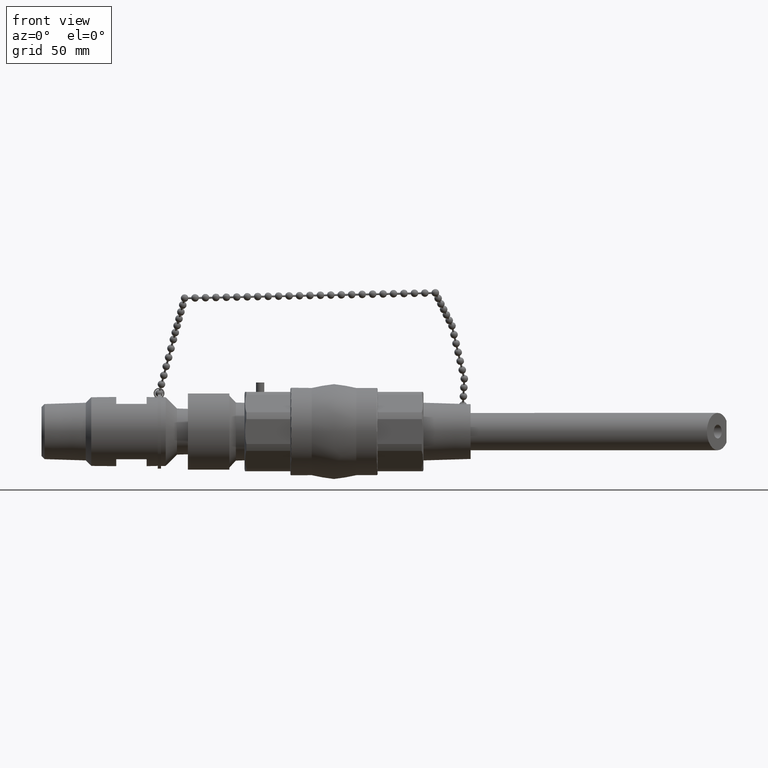
[diagram: clean part render]
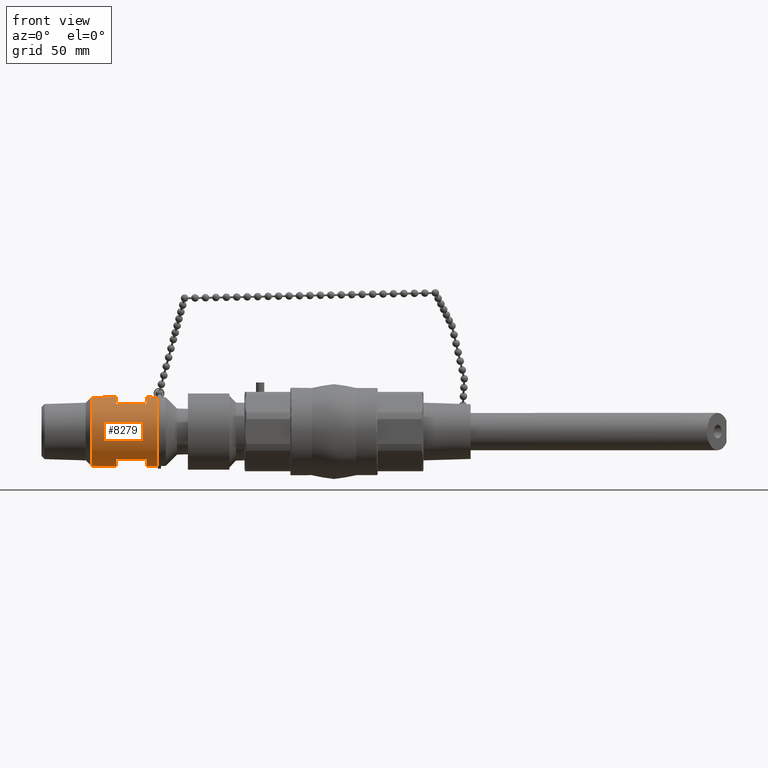
[diagram: same view with one face highlighted and labeled with its STEP entity id]
A machine part, front view. The second image highlights one B-rep face of the part: STEP entity #8279.
In plain terms, the highlighted cylindrical surface (bore or boss wall) has radius 15.875 mm, axis along (1, -0, 0).
Its self-contained STEP definition (entity closure, byte-faithful):
#7925=CARTESIAN_POINT('',(-3.186999999999999,0.625000000000000,-7.077011E-016));
#7926=VERTEX_POINT('',#7925);
#7927=CARTESIAN_POINT('',(-3.186999999999999,2.492252E-016,-7.077011E-016));
#7928=DIRECTION('',(1.0,0.0,0.0));
#7929=DIRECTION('',(0.0,1.0,0.0));
#7930=AXIS2_PLACEMENT_3D('',#7927,#7928,#7929);
#7931=CIRCLE('',#7930,0.625000000000000);
#7932=EDGE_CURVE('',#7926,#7926,#7931,.T.);
#7945=CARTESIAN_POINT('',(-4.387000000000001,0.625000000000000,-8.795185E-016));
#7946=VERTEX_POINT('',#7945);
#7947=CARTESIAN_POINT('',(-4.387000000000001,2.492252E-016,-8.795185E-016));
#7948=DIRECTION('',(1.0,0.0,0.0));
#7949=DIRECTION('',(0.0,1.0,0.0));
#7950=AXIS2_PLACEMENT_3D('',#7947,#7948,#7949);
#7951=CIRCLE('',#7950,0.625000000000000);
#7952=EDGE_CURVE('',#7946,#7946,#7951,.T.);
#8020=CARTESIAN_POINT('',(-3.787000000000000,2.492252E-016,-7.936098E-016));
#8021=DIRECTION('',(1.0,-5.323000E-031,1.431812E-016));
#8022=DIRECTION('',(0.0,1.0,0.0));
#8023=AXIS2_PLACEMENT_3D('',#8020,#8021,#8022);
#8024=CYLINDRICAL_SURFACE('',#8023,0.625000000000000);
#8025=ORIENTED_EDGE('',*,*,#7932,.F.);
#8026=EDGE_LOOP('',(#8025));
#8027=FACE_OUTER_BOUND('',#8026,.T.);
#8028=CARTESIAN_POINT('',(-3.537000000000000,0.624658342243656,-0.020662900701695));
#8029=VERTEX_POINT('',#8028);
#8030=CARTESIAN_POINT('',(-3.537000000000000,0.623720436847019,-0.039972698925194));
#8031=VERTEX_POINT('',#8030);
#8032=CARTESIAN_POINT('',(-3.537000000000000,2.492252E-016,-7.578145E-016));
#8033=DIRECTION('',(-1.0,0.0,0.0));
#8034=DIRECTION('',(0.0,1.0,0.0));
#8035=AXIS2_PLACEMENT_3D('',#8032,#8033,#8034);
#8036=CIRCLE('',#8035,0.625000000000000);
#8037=EDGE_CURVE('',#8029,#8031,#8036,.T.);
#8038=ORIENTED_EDGE('',*,*,#8037,.T.);
#8039=CARTESIAN_POINT('',(-3.386999999999998,0.625000000000000,-7.365767E-016));
#8040=VERTEX_POINT('',#8039);
#8041=CARTESIAN_POINT('',(-3.537000000000000,0.623720436847019,-0.039972698925194));
#8042=CARTESIAN_POINT('',(-3.528666666666667,0.623862561998753,-0.037755026260849));
#8043=CARTESIAN_POINT('',(-3.514083333333332,0.624090582541828,-0.033872772584588));
#8044=CARTESIAN_POINT('',(-3.497416666666671,0.624309754583237,-0.029433699923929));
#8045=CARTESIAN_POINT('',(-3.484916666666670,0.624456374058254,-0.026103589776494));
#8046=CARTESIAN_POINT('',(-3.476583333333337,0.624545239561686,-0.023883137200149));
#8047=CARTESIAN_POINT('',(-3.466166666666671,0.624645218051794,-0.021107156760391));
#8048=CARTESIAN_POINT('',(-3.457833333333337,0.624716317280063,-0.018886064321693));
#8049=CARTESIAN_POINT('',(-3.447416666666666,0.624794084964382,-0.016109372893451));
#8050=CARTESIAN_POINT('',(-3.439083333333332,0.624847413367492,-0.013887782741573));
#8051=CARTESIAN_POINT('',(-3.428666666666667,0.624902965268728,-0.011110558032144));
#8052=CARTESIAN_POINT('',(-3.420333333333333,0.624938519433846,-0.008888612348097));
#8053=CARTESIAN_POINT('',(-3.409916666666665,0.624971851996049,-0.006111032098916));
#8054=CARTESIAN_POINT('',(-3.399499999999996,0.624994074062527,-0.003333333333352));
#8055=CARTESIAN_POINT('',(-3.391166666666665,0.625000000000000,-0.001111111111112));
#8056=CARTESIAN_POINT('',(-3.386999999999998,0.625000000000000,-7.365767E-016));
#8057=B_SPLINE_CURVE_WITH_KNOTS('',3,(#8041,#8042,#8043,#8044,#8045,#8046,#8047,#8048,#8049,#8050,#8051,#8052,#8053,#8054,#8055,#8056),.UNSPECIFIED.,.F.,.U.,(4,1,1,1,1,1,1,1,1,1,1,1,1,4),(-0.394314037285005,-0.328595031070837,-0.279305776410212,-0.262876024856670,-0.230016521749586,-0.213586770196044,-0.180727267088961,-0.164297515535419,-0.131438012428335,-0.115008260874793,-0.082148757767709,-0.065719006214167,-0.032859503107084,0.0),.UNSPECIFIED.);
#8058=EDGE_CURVE('',#8031,#8040,#8057,.T.);
#8059=ORIENTED_EDGE('',*,*,#8058,.T.);
#8060=CARTESIAN_POINT('',(-3.536999999999999,0.623720436847019,0.039972698925193));
#8061=VERTEX_POINT('',#8060);
#8062=CARTESIAN_POINT('',(-3.387000000000000,0.625000000000000,-7.527284E-016));
#8063=CARTESIAN_POINT('',(-3.395333333333333,0.625000000000000,0.002222222222221));
#8064=CARTESIAN_POINT('',(-3.409916666666662,0.624979259064616,0.006111111110902));
#8065=CARTESIAN_POINT('',(-3.426583333333332,0.624914075650919,0.010555113090304));
#8066=CARTESIAN_POINT('',(-3.439083333333330,0.624847413367235,0.013887782741565));
#8067=CARTESIAN_POINT('',(-3.447416666666664,0.624794084964529,0.016109372893453));
#8068=CARTESIAN_POINT('',(-3.457833333333329,0.624716317280025,0.018886064321691));
#8069=CARTESIAN_POINT('',(-3.466166666666664,0.624645218051830,0.021107156760390));
#8070=CARTESIAN_POINT('',(-3.476583333333334,0.624545239561538,0.023883137200141));
#8071=CARTESIAN_POINT('',(-3.484916666666665,0.624456374058511,0.026103589776503));
#8072=CARTESIAN_POINT('',(-3.495333333333331,0.624334191160828,0.028878681565959));
#8073=CARTESIAN_POINT('',(-3.503666666666665,0.624227565070497,0.031098352171786));
#8074=CARTESIAN_POINT('',(-3.514083333333330,0.624083185584445,0.033872377705979));
#8075=CARTESIAN_POINT('',(-3.524500000000000,0.623927710769327,0.036645810927514));
#8076=CARTESIAN_POINT('',(-3.532833333333332,0.623791499422886,0.038863862593020));
#8077=CARTESIAN_POINT('',(-3.536999999999999,0.623720436847019,0.039972698925193));
#8078=B_SPLINE_CURVE_WITH_KNOTS('',3,(#8062,#8063,#8064,#8065,#8066,#8067,#8068,#8069,#8070,#8071,#8072,#8073,#8074,#8075,#8076,#8077),.UNSPECIFIED.,.F.,.U.,(4,1,1,1,1,1,1,1,1,1,1,1,1,4),(-0.394314037285005,-0.328595031070837,-0.279305776410212,-0.262876024856670,-0.230016521749586,-0.213586770196044,-0.180727267088961,-0.164297515535419,-0.131438012428335,-0.115008260874793,-0.082148757767709,-0.065719006214167,-0.032859503107084,0.0),.UNSPECIFIED.);
#8079=EDGE_CURVE('',#8040,#8061,#8078,.T.);
#8080=ORIENTED_EDGE('',*,*,#8079,.T.);
#8081=CARTESIAN_POINT('',(-3.537000000000000,0.624658342243656,0.020662900701694));
#8082=VERTEX_POINT('',#8081);
#8083=CARTESIAN_POINT('',(-3.536999999999997,2.492252E-016,-7.578145E-016));
#8084=DIRECTION('',(-1.0,0.0,-3.652217E-014));
#8085=DIRECTION('',(0.0,1.0,0.0));
#8086=AXIS2_PLACEMENT_3D('',#8083,#8084,#8085);
#8087=CIRCLE('',#8086,0.625000000000000);
#8088=EDGE_CURVE('',#8061,#8082,#8087,.T.);
#8089=ORIENTED_EDGE('',*,*,#8088,.T.);
#8090=CARTESIAN_POINT('',(-3.459499999999999,0.625000000000000,-7.452338E-016));
#8091=VERTEX_POINT('',#8090);
#8092=CARTESIAN_POINT('',(-3.537000000000000,0.624658342243656,0.020662900701694));
#8093=CARTESIAN_POINT('',(-3.532694444444445,0.624696300757538,0.019515380191498));
#8094=CARTESIAN_POINT('',(-3.525159722222221,0.624757194544063,0.017507036253815));
#8095=CARTESIAN_POINT('',(-3.516548611111114,0.624815718369598,0.015211480947638));
#8096=CARTESIAN_POINT('',(-3.510090277777779,0.624854866858367,0.013489703323744));
#8097=CARTESIAN_POINT('',(-3.505784722222223,0.624878593586902,0.012341799270770));
#8098=CARTESIAN_POINT('',(-3.500402777777781,0.624905286498493,0.010906861996272));
#8099=CARTESIAN_POINT('',(-3.496097222222225,0.624924268367749,0.009758869678736));
#8100=CARTESIAN_POINT('',(-3.490715277777782,0.624945029994155,0.008323834331386));
#8101=CARTESIAN_POINT('',(-3.486409722222227,0.624959266679861,0.007175773362073));
#8102=CARTESIAN_POINT('',(-3.481027777777784,0.624974096666367,0.005740664458618));
#8103=CARTESIAN_POINT('',(-3.476722222222228,0.624983587925309,0.004592554451483));
#8104=CARTESIAN_POINT('',(-3.471340277777777,0.624992486018506,0.003157396509927));
#8105=CARTESIAN_POINT('',(-3.465958333333334,0.624998418106174,0.001722222222222));
#8106=CARTESIAN_POINT('',(-3.461652777777776,0.625000000000000,0.000574074074073));
#8107=CARTESIAN_POINT('',(-3.459499999999999,0.625000000000000,-7.452338E-016));
#8108=B_SPLINE_CURVE_WITH_KNOTS('',3,(#8092,#8093,#8094,#8095,#8096,#8097,#8098,#8099,#8100,#8101,#8102,#8103,#8104,#8105,#8106,#8107),.UNSPECIFIED.,.F.,.U.,(4,1,1,1,1,1,1,1,1,1,1,1,1,4),(-0.203728919263919,-0.169774099386600,-0.144307984478610,-0.135819279509280,-0.118841869570620,-0.110353164601290,-0.093375754662630,-0.084887049693300,-0.067909639754640,-0.059420934785310,-0.042443524846650,-0.033954819877320,-0.016977409938660,0.0),.UNSPECIFIED.);
#8109=EDGE_CURVE('',#8082,#8091,#8108,.T.);
#8110=ORIENTED_EDGE('',*,*,#8109,.T.);
#8111=CARTESIAN_POINT('',(-3.459500000000000,0.625000000000000,-7.849638E-016));
#8112=CARTESIAN_POINT('',(-3.463805555555556,0.625000000000000,-0.001148148148149));
#8113=CARTESIAN_POINT('',(-3.471340277777783,0.624994463360617,-0.003157407407401));
#8114=CARTESIAN_POINT('',(-3.479951388888896,0.624977062663807,-0.005453642677931));
#8115=CARTESIAN_POINT('',(-3.486409722222228,0.624959266679844,-0.007175773362074));
#8116=CARTESIAN_POINT('',(-3.490715277777787,0.624945029994167,-0.008323834331388));
#8117=CARTESIAN_POINT('',(-3.496097222222230,0.624924268367748,-0.009758869678738));
#8118=CARTESIAN_POINT('',(-3.500402777777784,0.624905286498498,-0.010906861996273));
#8119=CARTESIAN_POINT('',(-3.505784722222232,0.624878593586892,-0.012341799270771));
#8120=CARTESIAN_POINT('',(-3.510090277777781,0.624854866858386,-0.013489703323746));
#8121=CARTESIAN_POINT('',(-3.515472222222228,0.624822243117615,-0.014924518010321));
#8122=CARTESIAN_POINT('',(-3.519777777777782,0.624793771935222,-0.016072314187460));
#8123=CARTESIAN_POINT('',(-3.525159722222226,0.624755217922595,-0.017506981773134));
#8124=CARTESIAN_POINT('',(-3.530541666666667,0.624713698985398,-0.018941567637977));
#8125=CARTESIAN_POINT('',(-3.534847222222223,0.624677321500597,-0.020089140446597));
#8126=CARTESIAN_POINT('',(-3.537000000000001,0.624658342243656,-0.020662900701695));
#8127=B_SPLINE_CURVE_WITH_KNOTS('',3,(#8111,#8112,#8113,#8114,#8115,#8116,#8117,#8118,#8119,#8120,#8121,#8122,#8123,#8124,#8125,#8126),.UNSPECIFIED.,.F.,.U.,(4,1,1,1,1,1,1,1,1,1,1,1,1,4),(-0.203728919263919,-0.169774099386599,-0.144307984478609,-0.135819279509279,-0.118841869570619,-0.110353164601289,-0.093375754662629,-0.084887049693299,-0.067909639754640,-0.059420934785310,-0.042443524846650,-0.033954819877320,-0.016977409938660,0.0),.UNSPECIFIED.);
#8128=EDGE_CURVE('',#8091,#8029,#8127,.T.);
#8129=ORIENTED_EDGE('',*,*,#8128,.T.);
#8130=EDGE_LOOP('',(#8038,#8059,#8080,#8089,#8110,#8129));
#8131=FACE_BOUND('',#8130,.T.);
#8132=CARTESIAN_POINT('',(-3.937000000000000,0.624920001706652,-0.009999573338795));
#8133=VERTEX_POINT('',#8132);
#8134=CARTESIAN_POINT('',(-3.787000000000000,0.624920001706653,-0.009999573338795));
#8135=VERTEX_POINT('',#8134);
#8136=CARTESIAN_POINT('',(-3.937000000000000,0.624920001706652,-0.009999573338795));
#8137=DIRECTION('',(1.0,0.0,0.0));
#8138=VECTOR('',#8137,0.150000000000000);
#8139=LINE('',#8136,#8138);
#8140=EDGE_CURVE('',#8133,#8135,#8139,.T.);
#8141=ORIENTED_EDGE('',*,*,#8140,.T.);
#8142=CARTESIAN_POINT('',(-3.787000000000000,0.624920001706652,0.009999573338794));
#8143=VERTEX_POINT('',#8142);
#8144=CARTESIAN_POINT('',(-3.786999999999998,2.492252E-016,-7.936098E-016));
#8145=DIRECTION('',(1.0,0.0,0.0));
#8146=DIRECTION('',(0.0,1.0,0.0));
#8147=AXIS2_PLACEMENT_3D('',#8144,#8145,#8146);
#8148=CIRCLE('',#8147,0.625000000000000);
#8149=EDGE_CURVE('',#8135,#8143,#8148,.T.);
#8150=ORIENTED_EDGE('',*,*,#8149,.T.);
#8151=CARTESIAN_POINT('',(-3.937000000000000,0.624920001706653,0.009999573338794));
#8152=VERTEX_POINT('',#8151);
#8153=CARTESIAN_POINT('',(-3.787000000000000,0.624920001706652,0.009999573338794));
#8154=DIRECTION('',(-1.0,0.0,0.0));
#8155=VECTOR('',#8154,0.150000000000000);
#8156=LINE('',#8153,#8155);
#8157=EDGE_CURVE('',#8143,#8152,#8156,.T.);
#8158=ORIENTED_EDGE('',*,*,#8157,.T.);
#8159=CARTESIAN_POINT('',(-3.936999999999999,2.492252E-016,-8.150870E-016));
#8160=DIRECTION('',(-1.0,0.0,0.0));
#8161=DIRECTION('',(0.0,1.0,0.0));
#8162=AXIS2_PLACEMENT_3D('',#8159,#8160,#8161);
#8163=CIRCLE('',#8162,0.625000000000000);
#8164=EDGE_CURVE('',#8152,#8133,#8163,.T.);
#8165=ORIENTED_EDGE('',*,*,#8164,.T.);
#8166=EDGE_LOOP('',(#8141,#8150,#8158,#8165));
#8167=FACE_BOUND('',#8166,.T.);
#8168=CARTESIAN_POINT('',(-3.737000000000000,0.624920001706652,-0.009999573338795));
#8169=VERTEX_POINT('',#8168);
#8170=CARTESIAN_POINT('',(-3.586999999999998,0.624920001706653,-0.009999573338795));
#8171=VERTEX_POINT('',#8170);
#8172=CARTESIAN_POINT('',(-3.737000000000000,0.624920001706652,-0.009999573338795));
#8173=DIRECTION('',(1.0,0.0,0.0));
#8174=VECTOR('',#8173,0.150000000000002);
#8175=LINE('',#8172,#8174);
#8176=EDGE_CURVE('',#8169,#8171,#8175,.T.);
#8177=ORIENTED_EDGE('',*,*,#8176,.T.);
#8178=CARTESIAN_POINT('',(-3.587000000000001,0.624920001706652,0.009999573338794));
#8179=VERTEX_POINT('',#8178);
#8180=CARTESIAN_POINT('',(-3.587000000000001,2.492252E-016,-7.649735E-016));
#8181=DIRECTION('',(1.0,0.0,3.516837E-014));
#8182=DIRECTION('',(0.0,1.0,0.0));
#8183=AXIS2_PLACEMENT_3D('',#8180,#8181,#8182);
#8184=CIRCLE('',#8183,0.625000000000000);
#8185=EDGE_CURVE('',#8171,#8179,#8184,.T.);
#8186=ORIENTED_EDGE('',*,*,#8185,.T.);
#8187=CARTESIAN_POINT('',(-3.736999999999999,0.624920001706653,0.009999573338794));
#8188=VERTEX_POINT('',#8187);
#8189=CARTESIAN_POINT('',(-3.587000000000001,0.624920001706652,0.009999573338794));
#8190=DIRECTION('',(-1.0,0.0,0.0));
#8191=VECTOR('',#8190,0.149999999999998);
#8192=LINE('',#8189,#8191);
#8193=EDGE_CURVE('',#8179,#8188,#8192,.T.);
#8194=ORIENTED_EDGE('',*,*,#8193,.T.);
#8195=CARTESIAN_POINT('',(-3.737000000000000,2.492252E-016,-7.864507E-016));
#8196=DIRECTION('',(-1.0,0.0,0.0));
#8197=DIRECTION('',(0.0,1.0,0.0));
#8198=AXIS2_PLACEMENT_3D('',#8195,#8196,#8197);
#8199=CIRCLE('',#8198,0.625000000000000);
#8200=EDGE_CURVE('',#8188,#8169,#8199,.T.);
#8201=ORIENTED_EDGE('',*,*,#8200,.T.);
#8202=EDGE_LOOP('',(#8177,#8186,#8194,#8201));
#8203=FACE_BOUND('',#8202,.T.);
#8204=CARTESIAN_POINT('',(-3.387000000000000,0.375000000000000,0.499999999999999));
#8205=VERTEX_POINT('',#8204);
#8206=CARTESIAN_POINT('',(-3.387000000000000,-0.375000000000000,0.499999999999999));
#8207=VERTEX_POINT('',#8206);
#8208=CARTESIAN_POINT('',(-3.387000000000000,2.492252E-016,-7.363373E-016));
#8209=DIRECTION('',(1.0,0.0,0.0));
#8210=DIRECTION('',(0.0,1.0,0.0));
#8211=AXIS2_PLACEMENT_3D('',#8208,#8209,#8210);
#8212=CIRCLE('',#8211,0.625000000000000);
#8213=EDGE_CURVE('',#8205,#8207,#8212,.T.);
#8214=ORIENTED_EDGE('',*,*,#8213,.T.);
#8215=CARTESIAN_POINT('',(-3.936999999999999,-0.375000000000000,0.499999999999999));
#8216=VERTEX_POINT('',#8215);
#8217=CARTESIAN_POINT('',(-3.387000000000000,-0.375000000000000,0.499999999999999));
#8218=DIRECTION('',(-1.0,0.0,0.0));
#8219=VECTOR('',#8218,0.549999999999999);
#8220=LINE('',#8217,#8219);
#8221=EDGE_CURVE('',#8207,#8216,#8220,.T.);
#8222=ORIENTED_EDGE('',*,*,#8221,.T.);
#8223=CARTESIAN_POINT('',(-3.936999999999999,0.375000000000000,0.499999999999999));
#8224=VERTEX_POINT('',#8223);
#8225=CARTESIAN_POINT('',(-3.936999999999999,2.492252E-016,-8.150870E-016));
#8226=DIRECTION('',(-1.0,0.0,0.0));
#8227=DIRECTION('',(0.0,1.0,0.0));
#8228=AXIS2_PLACEMENT_3D('',#8225,#8226,#8227);
#8229=CIRCLE('',#8228,0.625000000000000);
#8230=EDGE_CURVE('',#8216,#8224,#8229,.T.);
#8231=ORIENTED_EDGE('',*,*,#8230,.T.);
#8232=CARTESIAN_POINT('',(-3.936999999999999,0.375000000000000,0.499999999999999));
#8233=DIRECTION('',(1.0,0.0,0.0));
#8234=VECTOR('',#8233,0.549999999999999);
#8235=LINE('',#8232,#8234);
#8236=EDGE_CURVE('',#8224,#8205,#8235,.T.);
#8237=ORIENTED_EDGE('',*,*,#8236,.T.);
#8238=EDGE_LOOP('',(#8214,#8222,#8231,#8237));
#8239=FACE_BOUND('',#8238,.T.);
#8240=CARTESIAN_POINT('',(-3.936999999999999,-0.375000000000000,-0.500000000000001));
#8241=VERTEX_POINT('',#8240);
#8242=CARTESIAN_POINT('',(-3.387000000000000,-0.375000000000000,-0.500000000000001));
#8243=VERTEX_POINT('',#8242);
#8244=CARTESIAN_POINT('',(-3.936999999999999,-0.375000000000000,-0.500000000000001));
#8245=DIRECTION('',(1.0,0.0,0.0));
#8246=VECTOR('',#8245,0.549999999999999);
#8247=LINE('',#8244,#8246);
#8248=EDGE_CURVE('',#8241,#8243,#8247,.T.);
#8249=ORIENTED_EDGE('',*,*,#8248,.T.);
#8250=CARTESIAN_POINT('',(-3.387000000000000,0.375000000000000,-0.500000000000001));
#8251=VERTEX_POINT('',#8250);
#8252=CARTESIAN_POINT('',(-3.387000000000000,2.492252E-016,-7.363373E-016));
#8253=DIRECTION('',(1.0,0.0,0.0));
#8254=DIRECTION('',(0.0,1.0,0.0));
#8255=AXIS2_PLACEMENT_3D('',#8252,#8253,#8254);
#8256=CIRCLE('',#8255,0.625000000000000);
#8257=EDGE_CURVE('',#8243,#8251,#8256,.T.);
#8258=ORIENTED_EDGE('',*,*,#8257,.T.);
#8259=CARTESIAN_POINT('',(-3.936999999999999,0.375000000000000,-0.500000000000001));
#8260=VERTEX_POINT('',#8259);
#8261=CARTESIAN_POINT('',(-3.387000000000000,0.375000000000000,-0.500000000000001));
#8262=DIRECTION('',(-1.0,0.0,0.0));
#8263=VECTOR('',#8262,0.549999999999999);
#8264=LINE('',#8261,#8263);
#8265=EDGE_CURVE('',#8251,#8260,#8264,.T.);
#8266=ORIENTED_EDGE('',*,*,#8265,.T.);
#8267=CARTESIAN_POINT('',(-3.936999999999999,2.492252E-016,-8.150870E-016));
#8268=DIRECTION('',(-1.0,0.0,0.0));
#8269=DIRECTION('',(0.0,1.0,0.0));
#8270=AXIS2_PLACEMENT_3D('',#8267,#8268,#8269);
#8271=CIRCLE('',#8270,0.625000000000000);
#8272=EDGE_CURVE('',#8260,#8241,#8271,.T.);
#8273=ORIENTED_EDGE('',*,*,#8272,.T.);
#8274=EDGE_LOOP('',(#8249,#8258,#8266,#8273));
#8275=FACE_BOUND('',#8274,.T.);
#8276=ORIENTED_EDGE('',*,*,#7952,.T.);
#8277=EDGE_LOOP('',(#8276));
#8278=FACE_BOUND('',#8277,.T.);
#8279=ADVANCED_FACE('',(#8027,#8131,#8167,#8203,#8239,#8275,#8278),#8024,.T.);